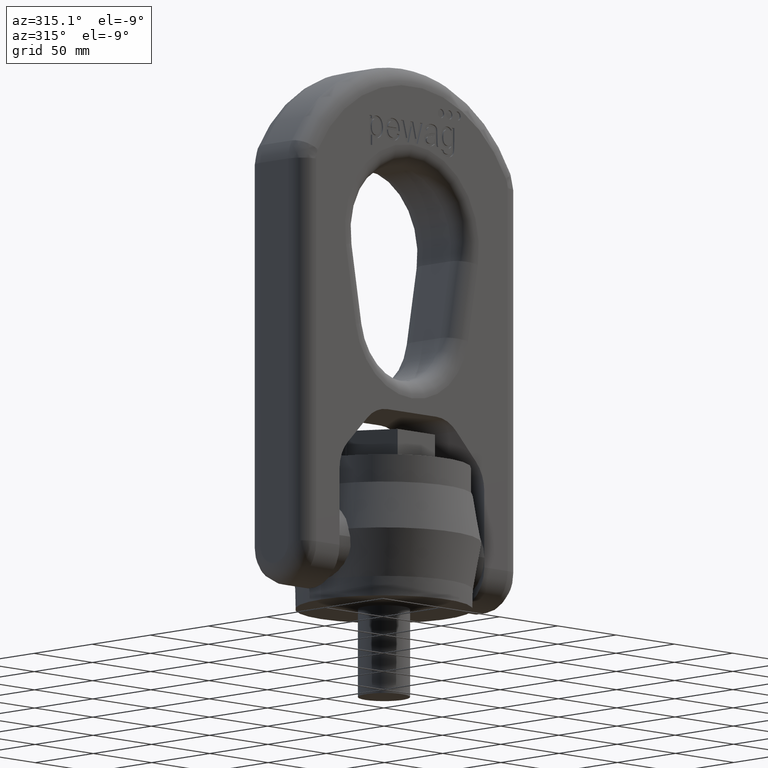
[diagram: clean part render]
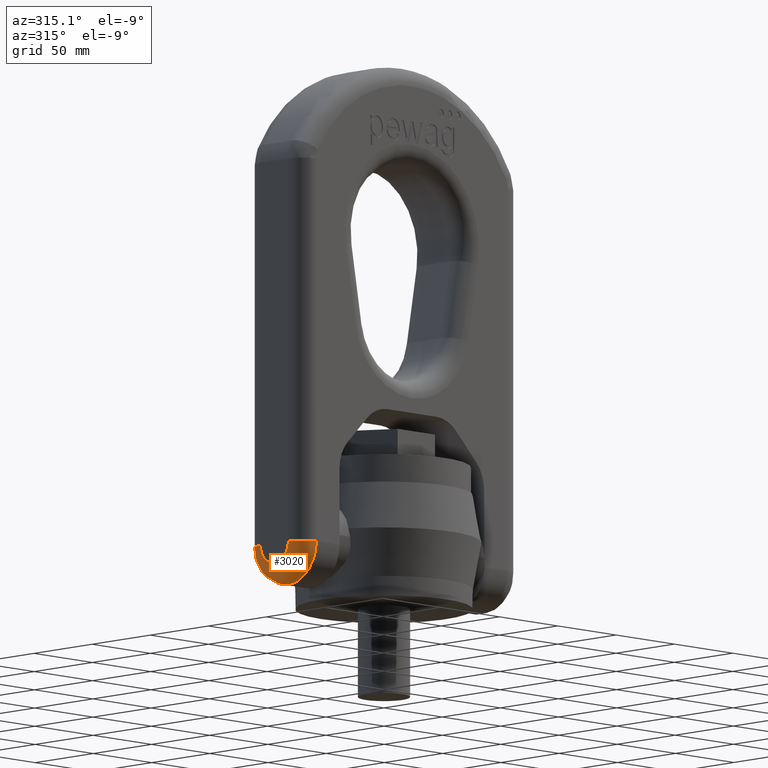
[diagram: same view with one face highlighted and labeled with its STEP entity id]
A machine part, auxiliary view. The second image highlights one B-rep face of the part: STEP entity #3020.
In plain terms, the highlighted face is a freeform B-spline surface patch.
Its self-contained STEP definition (entity closure, byte-faithful):
#207=(
BOUNDED_SURFACE()
B_SPLINE_SURFACE(3,3,((#9717,#9718,#9719,#9720),(#9721,#9722,#9723,#9724),
(#9725,#9726,#9727,#9728),(#9729,#9730,#9731,#9732)),.UNSPECIFIED.,.F.,
 .F.,.F.)
B_SPLINE_SURFACE_WITH_KNOTS((4,4),(4,4),(0.,1.),(0.,1.),.UNSPECIFIED.)
GEOMETRIC_REPRESENTATION_ITEM()
RATIONAL_B_SPLINE_SURFACE(((1.,0.333333333333333,0.333333333333333,1.),
(0.804737854124365,0.268245951374788,0.268245951374788,0.804737854124365),
(0.804737854124365,0.268245951374788,0.268245951374788,0.804737854124365),
(1.,0.333333333333333,0.333333333333333,1.)))
REPRESENTATION_ITEM('')
SURFACE()
);
#2645=FACE_OUTER_BOUND('',#3413,.T.);
#3020=ADVANCED_FACE('',(#2645),#207,.T.);
#3413=EDGE_LOOP('',(#4617,#4618,#4619,#4620));
#4617=ORIENTED_EDGE('',*,*,#5729,.F.);
#4618=ORIENTED_EDGE('',*,*,#5170,.F.);
#4619=ORIENTED_EDGE('',*,*,#5730,.F.);
#4620=ORIENTED_EDGE('',*,*,#5362,.F.);
#4737=VERTEX_POINT('',#7055);
#4739=VERTEX_POINT('',#7058);
#4921=VERTEX_POINT('',#7746);
#4922=VERTEX_POINT('',#7748);
#5170=EDGE_CURVE('',#4737,#4739,#5760,.T.);
#5362=EDGE_CURVE('',#4921,#4922,#5789,.T.);
#5729=EDGE_CURVE('',#4739,#4921,#5807,.T.);
#5730=EDGE_CURVE('',#4922,#4737,#5808,.T.);
#5760=CIRCLE('',#5864,23.9999999999999);
#5789=CIRCLE('',#5900,11.9999999999999);
#5807=CIRCLE('',#6030,12.);
#5808=CIRCLE('',#6031,12.);
#5864=AXIS2_PLACEMENT_3D('',#7057,#6180,#6181);
#5900=AXIS2_PLACEMENT_3D('',#7747,#6347,#6348);
#6030=AXIS2_PLACEMENT_3D('',#9715,#6868,#6869);
#6031=AXIS2_PLACEMENT_3D('',#9716,#6870,#6871);
#6180=DIRECTION('',(1.,0.,-1.04738021191052E-16));
#6181=DIRECTION('',(0.,0.,-1.));
#6347=DIRECTION('',(-1.,0.,1.04738021191052E-16));
#6348=DIRECTION('',(0.,0.,-1.));
#6868=DIRECTION('',(0.,0.,1.));
#6869=DIRECTION('',(1.,0.,0.));
#6870=DIRECTION('',(0.,0.,1.));
#6871=DIRECTION('',(1.,0.,0.));
#7055=CARTESIAN_POINT('',(-82.,-24.,30.0000000000001));
#7057=CARTESIAN_POINT('',(-82.,9.52252461280885E-14,30.0000000000001));
#7058=CARTESIAN_POINT('',(-82.,24.0000000000002,30.0000000000001));
#7746=CARTESIAN_POINT('',(-94.,12.,30.0000000000001));
#7747=CARTESIAN_POINT('',(-94.,9.52252461280886E-14,30.0000000000001));
#7748=CARTESIAN_POINT('',(-94.,-12.,30.0000000000001));
#9715=CARTESIAN_POINT('',(-82.,12.,30.0000000000001));
#9716=CARTESIAN_POINT('',(-82.,-11.9999999999998,30.0000000000001));
#9717=CARTESIAN_POINT('',(-82.,-23.9999999999998,30.0000000000001));
#9718=CARTESIAN_POINT('',(-82.,-23.9999999999998,-17.9999999999997));
#9719=CARTESIAN_POINT('',(-82.,24.,-17.9999999999997));
#9720=CARTESIAN_POINT('',(-82.,24.,30.0000000000001));
#9721=CARTESIAN_POINT('',(-89.0294372515229,-23.9999999999998,30.0000000000001));
#9722=CARTESIAN_POINT('',(-89.0294372515229,-23.9999999999998,-17.9999999999997));
#9723=CARTESIAN_POINT('',(-89.0294372515229,24.,-17.9999999999997));
#9724=CARTESIAN_POINT('',(-89.0294372515229,24.,30.0000000000001));
#9725=CARTESIAN_POINT('',(-94.,-19.0294372515227,30.0000000000001));
#9726=CARTESIAN_POINT('',(-94.,-19.0294372515227,-8.05887450304538));
#9727=CARTESIAN_POINT('',(-94.,19.0294372515228,-8.0588745030454));
#9728=CARTESIAN_POINT('',(-94.,19.0294372515228,30.0000000000001));
#9729=CARTESIAN_POINT('',(-94.,-11.9999999999998,30.0000000000001));
#9730=CARTESIAN_POINT('',(-94.,-11.9999999999998,6.00000000000033));
#9731=CARTESIAN_POINT('',(-94.,12.,6.00000000000032));
#9732=CARTESIAN_POINT('',(-94.,12.,30.0000000000001));